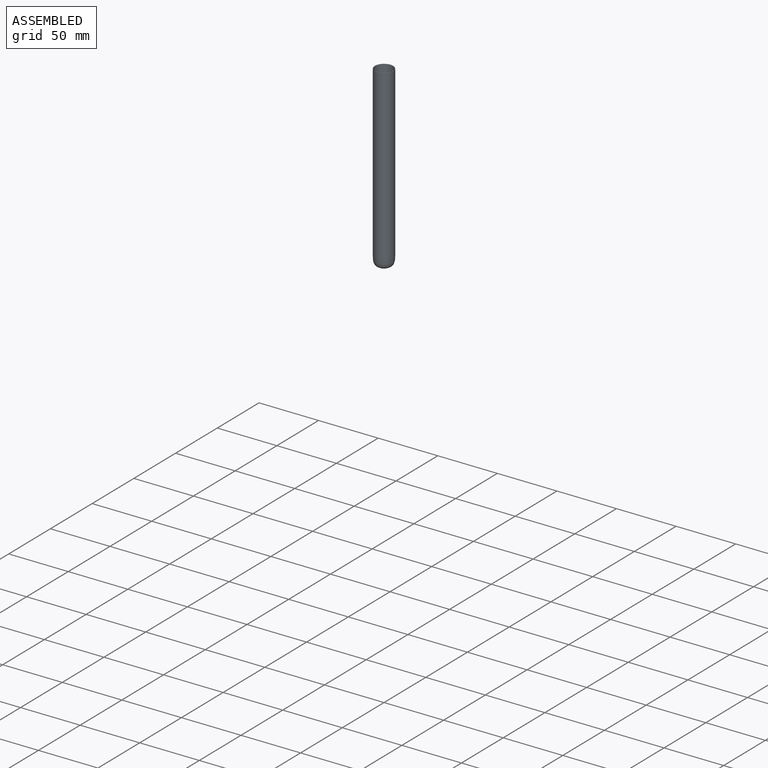
[diagram: assembled view]
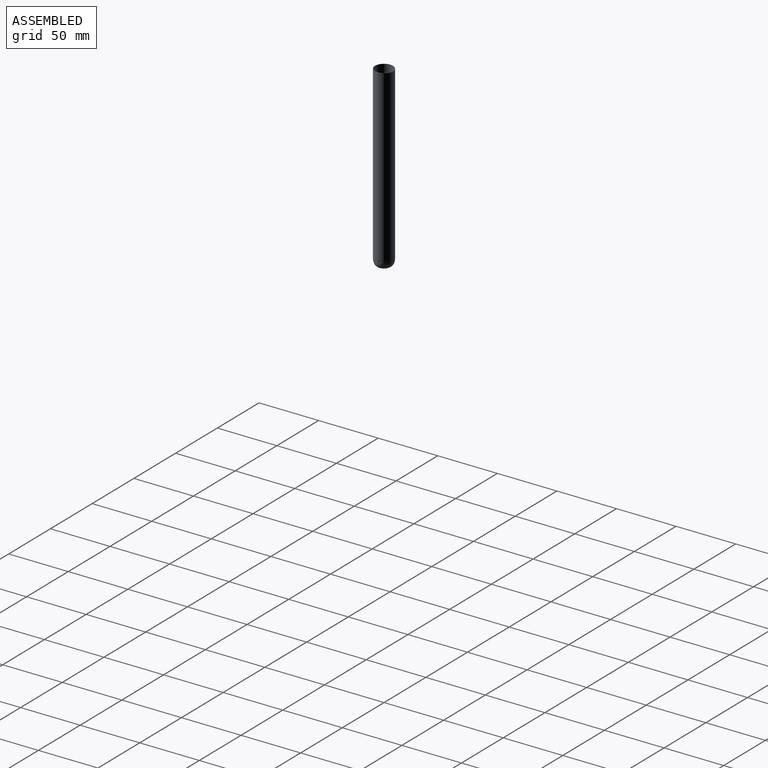
[diagram: assembled view, second angle]
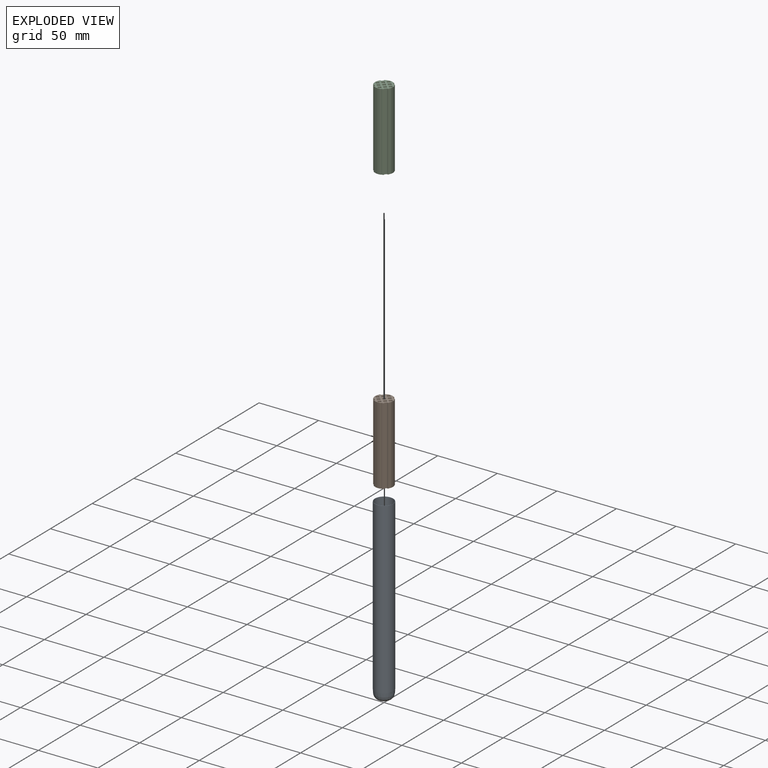
[diagram: exploded view]
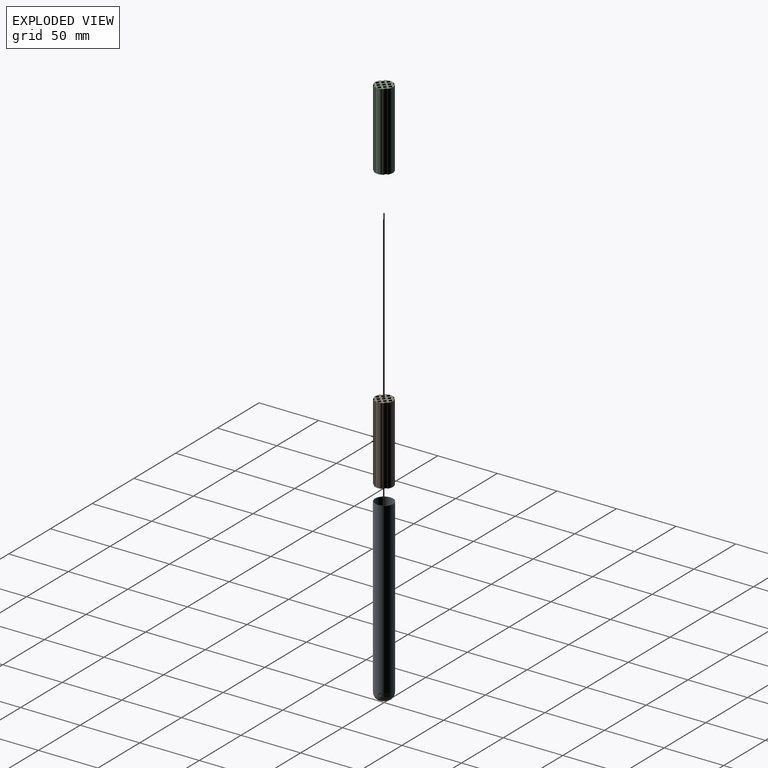
[diagram: exploded view, second angle]
ASSEMBLY  parts=3 mates=2
PART A: 5 faces, bbox 15.4x15.4x150.4 mm
  f0: cylinder r=7.5mm len=142.2mm, axis (0,0,1), area 6701mm2, adj f1,f4
  f1: revolved ~15x15mm, area 421.2mm2, adj f0
  f2: revolved ~15.4x15.4mm, area 442.2mm2, adj f3
  f3: cylinder r=7.7mm len=142.2mm, axis (0,0,1), area 6879.7mm2, adj f2,f4
  f4: plane 15.4x15.4mm, normal (0,0,1), area 9.6mm2, adj f0,f3
PART B: 78 faces, bbox 14.9x14.9x65 mm
  f0: plane 14.9x14.9mm, normal (0,0,-1), area 113.6mm2, adj f1,f2,f3,f4,f5,f6,f7,f8
  f1: plane 65x0.24mm, normal (-0.71,0.71,0), area 22.3mm2, adj f0,f2,f65,f69
  f2: plane 65x0.53mm, normal (0.71,0.71,0), area 49.1mm2, adj f0,f1,f65,f70
  f3: plane 65x0.53mm, normal (-0.71,0.71,0), area 48.9mm2, adj f0,f4,f65,f68
  f4: plane 65x1.7mm, normal (0.71,0.71,0), area 156mm2, adj f0,f3,f5,f65
  f5: plane 65x0.53mm, normal (0.71,-0.71,0), area 48.9mm2, adj f0,f4,f65,f69
  f6: plane 65x0.53mm, normal (0.71,0.71,0), area 49.1mm2, adj f0,f7,f65,f67
  f7: plane 65x0.24mm, normal (0.71,-0.71,0), area 22.3mm2, adj f0,f6,f65,f68
  f8: plane 65x0.53mm, normal (-0.71,0.71,0), area 49.1mm2, adj f0,f9,f65,f70
  f9: plane 65x0.24mm, normal (0.71,0.71,0), area 22.3mm2, adj f0,f8,f65,f71
  f10: plane 65x1.7mm, normal (-0.71,-0.71,0), area 156mm2, adj f0,f11,f13,f65
  f11: plane 65x1.7mm, normal (-0.71,0.71,0), area 156mm2, adj f0,f10,f12,f65
  f12: plane 65x1.7mm, normal (0.71,0.71,0), area 156mm2, adj f0,f11,f13,f65
  f13: plane 65x1.7mm, normal (0.71,-0.71,0), area 156mm2, adj f0,f10,f12,f65
  f14: plane 65x1.7mm, normal (-0.71,-0.71,0), area 156mm2, adj f0,f15,f17,f65
  f15: plane 65x1.7mm, normal (-0.71,0.71,0), area 156mm2, adj f0,f14,f16,f65
  f16: plane 65x1.7mm, normal (0.71,0.71,0), area 156mm2, adj f0,f15,f17,f65
  f17: plane 65x1.7mm, normal (0.71,-0.71,0), area 156mm2, adj f0,f14,f16,f65
  f18: plane 65x1.7mm, normal (-0.71,-0.71,0), area 156mm2, adj f0,f19,f21,f65
  f19: plane 65x1.7mm, normal (-0.71,0.71,0), area 156mm2, adj f0,f18,f20,f65
  f20: plane 65x1.7mm, normal (0.71,0.71,0), area 156mm2, adj f0,f19,f21,f65
  f21: plane 65x1.7mm, normal (0.71,-0.71,0), area 156mm2, adj f0,f18,f20,f65
  f22: plane 65x0.24mm, normal (0.71,0.71,0), area 22.3mm2, adj f0,f23,f65,f66
  f23: plane 65x0.53mm, normal (0.71,-0.71,0), area 49.1mm2, adj f0,f22,f65,f67
  f24: plane 65x0.53mm, normal (-0.71,-0.71,0), area 48.9mm2, adj f0,f25,f65,f71
  f25: plane 65x1.7mm, normal (-0.71,0.71,0), area 156mm2, adj f0,f24,f26,f65
  f26: plane 65x0.53mm, normal (0.71,0.71,0), area 48.9mm2, adj f0,f25,f65,f72
  f27: plane 65x1.7mm, normal (-0.71,-0.71,0), area 156mm2, adj f0,f28,f30,f65
  f28: plane 65x1.7mm, normal (-0.71,0.71,0), area 156mm2, adj f0,f27,f29,f65
  f29: plane 65x1.7mm, normal (0.71,0.71,0), area 156mm2, adj f0,f28,f30,f65
  f30: plane 65x1.7mm, normal (0.71,-0.71,0), area 156mm2, adj f0,f27,f29,f65
  f31: plane 65x1.7mm, normal (-0.71,-0.71,0), area 156mm2, adj f0,f32,f34,f65
  f32: plane 65x1.7mm, normal (-0.71,0.71,0), area 156mm2, adj f0,f31,f33,f65
  f33: plane 65x1.7mm, normal (0.71,0.71,0), area 156mm2, adj f0,f32,f34,f65
  f34: plane 65x1.7mm, normal (0.71,-0.71,0), area 156mm2, adj f0,f31,f33,f65
  f35: plane 65x0.53mm, normal (-0.71,-0.71,0), area 48.9mm2, adj f0,f37,f65,f66
  f36: plane 65x0.53mm, normal (0.71,0.71,0), area 48.9mm2, adj f0,f37,f65,f77
  f37: plane 65x1.7mm, normal (0.71,-0.71,0), area 156mm2, adj f0,f35,f36,f65
  f38: plane 65x0.24mm, normal (-0.71,-0.71,0), area 22.3mm2, adj f0,f39,f65,f72
  f39: plane 65x0.53mm, normal (-0.71,0.71,0), area 49.1mm2, adj f0,f38,f65,f73
  f40: plane 65x1.7mm, normal (-0.71,-0.71,0), area 156mm2, adj f0,f41,f43,f65
  f41: plane 65x1.7mm, normal (-0.71,0.71,0), area 156mm2, adj f0,f40,f42,f65
  f42: plane 65x1.7mm, normal (0.71,0.71,0), area 156mm2, adj f0,f41,f43,f65
  f43: plane 65x1.7mm, normal (0.71,-0.71,0), area 156mm2, adj f0,f40,f42,f65
  f44: plane 65x1.7mm, normal (-0.71,-0.71,0), area 156mm2, adj f0,f45,f47,f65
  f45: plane 65x1.7mm, normal (-0.71,0.71,0), area 156mm2, adj f0,f44,f46,f65
  f46: plane 65x1.7mm, normal (0.71,0.71,0), area 156mm2, adj f0,f45,f47,f65
  f47: plane 65x1.7mm, normal (0.71,-0.71,0), area 156mm2, adj f0,f44,f46,f65
  f48: plane 65x1.7mm, normal (-0.71,-0.71,0), area 156mm2, adj f0,f49,f51,f65
  f49: plane 65x1.7mm, normal (-0.71,0.71,0), area 156mm2, adj f0,f48,f50,f65
  f50: plane 65x1.7mm, normal (0.71,0.71,0), area 156mm2, adj f0,f49,f51,f65
  f51: plane 65x1.7mm, normal (0.71,-0.71,0), area 156mm2, adj f0,f48,f50,f65
  f52: plane 65x0.24mm, normal (-0.71,-0.71,0), area 22.3mm2, adj f0,f53,f65,f77
  f53: plane 65x0.53mm, normal (0.71,-0.71,0), area 49.1mm2, adj f0,f52,f65,f76
  f54: plane 65x0.53mm, normal (-0.71,-0.71,0), area 49.1mm2, adj f0,f55,f65,f73
  f55: plane 65x0.24mm, normal (-0.71,0.71,0), area 22.3mm2, adj f0,f54,f65,f74
  f56: plane 65x1.7mm, normal (-0.71,-0.71,0), area 156mm2, adj f0,f57,f58,f65
  f57: plane 65x0.53mm, normal (-0.71,0.71,0), area 48.9mm2, adj f0,f56,f65,f75
  f58: plane 65x0.53mm, normal (0.71,-0.71,0), area 48.9mm2, adj f0,f56,f65,f74
  f59: plane 65x0.53mm, normal (-0.71,-0.71,0), area 49.1mm2, adj f0,f60,f65,f76
  f60: plane 65x0.24mm, normal (0.71,-0.71,0), area 22.3mm2, adj f0,f59,f65,f75
  f61: plane 65x1.7mm, normal (-0.71,-0.71,0), area 156mm2, adj f0,f62,f64,f65
  f62: plane 65x1.7mm, normal (-0.71,0.71,0), area 156mm2, adj f0,f61,f63,f65
  f63: plane 65x1.7mm, normal (0.71,0.71,0), area 156mm2, adj f0,f62,f64,f65
  f64: plane 65x1.7mm, normal (0.71,-0.71,0), area 156mm2, adj f0,f61,f63,f65
  f65: plane 14.9x14.9mm, normal (0,0,1), area 113.6mm2, adj f1,f2,f3,f4,f5,f6,f7,f8
  f66: cylinder r=7.45mm len=65mm, axis (0,0,-1), area 101.2mm2, adj f0,f22,f35,f65
  f67: cylinder r=7.45mm len=65mm, axis (0,0,-1), area 293.5mm2, adj f0,f6,f23,f65
  f68: cylinder r=7.45mm len=65mm, axis (0,0,-1), area 101.2mm2, adj f0,f3,f7,f65
  f69: cylinder r=7.45mm len=65mm, axis (0,0,-1), area 101.2mm2, adj f0,f1,f5,f65
  f70: cylinder r=7.45mm len=65mm, axis (0,0,-1), area 293.5mm2, adj f0,f2,f8,f65
  f71: cylinder r=7.45mm len=65mm, axis (0,0,-1), area 101.2mm2, adj f0,f9,f24,f65
  f72: cylinder r=7.45mm len=65mm, axis (0,0,-1), area 101.2mm2, adj f0,f26,f38,f65
  f73: cylinder r=7.45mm len=65mm, axis (0,0,-1), area 293.5mm2, adj f0,f39,f54,f65
  f74: cylinder r=7.45mm len=65mm, axis (0,0,-1), area 101.2mm2, adj f0,f55,f58,f65
  f75: cylinder r=7.45mm len=65mm, axis (0,0,-1), area 101.2mm2, adj f0,f57,f60,f65
  f76: cylinder r=7.45mm len=65mm, axis (0,0,-1), area 293.5mm2, adj f0,f53,f59,f65
  f77: cylinder r=7.45mm len=65mm, axis (0,0,-1), area 101.2mm2, adj f0,f36,f52,f65
PART C: same geometry as B
PLACE A t=(0,0,41.41)mm
PLACE B t=(0,0,8.2)mm
PLACE C t=(0,0,73.2)mm
MATE fastened C.f66 <-> B.f66  axis (0,0,-1) through (0,0,73.2)mm
MATE fastened A.f0 <-> B.f66  axis (0,0,1) through (0,0,8.2)mm
